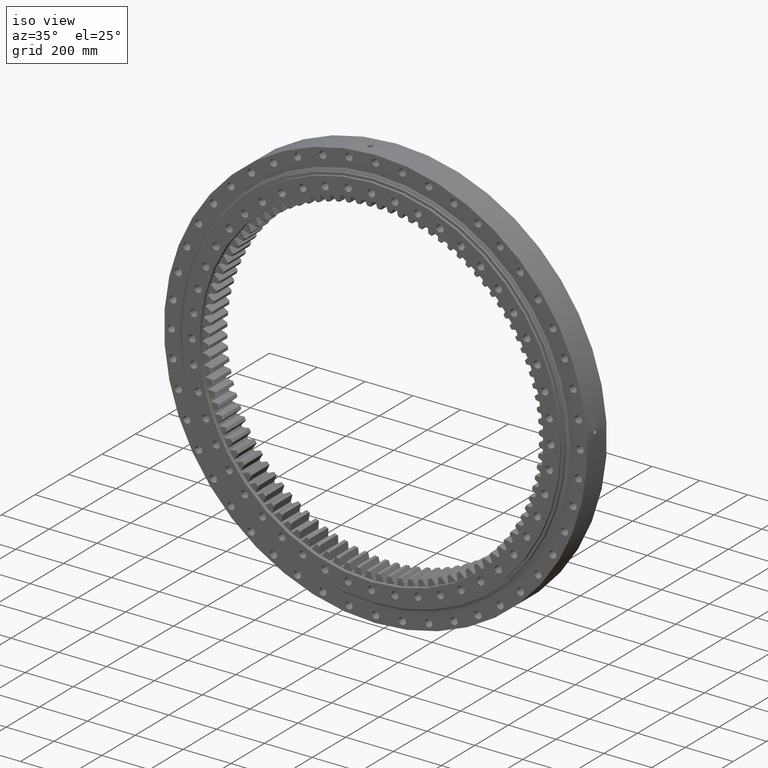
[diagram: clean part render]
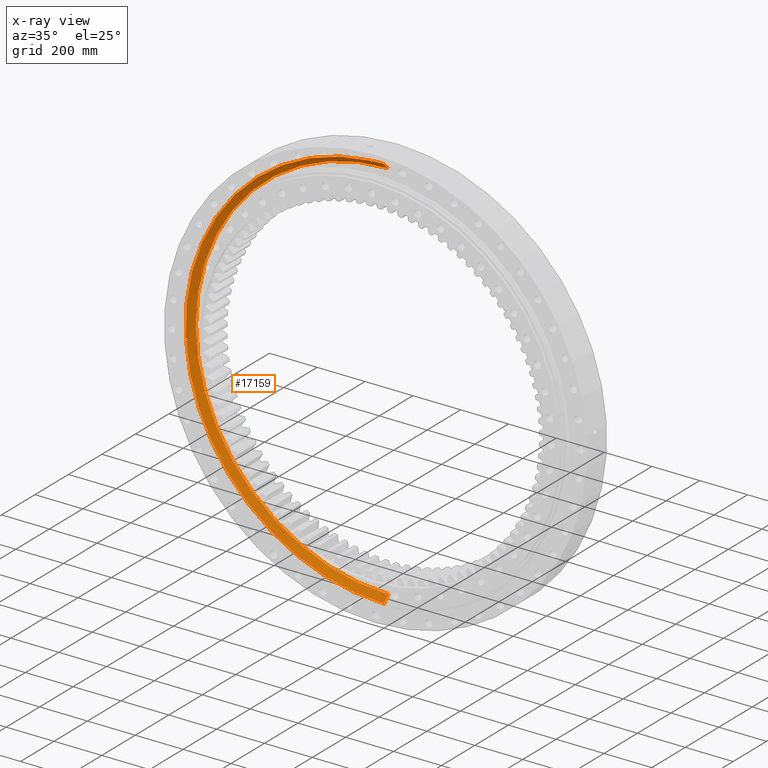
[diagram: x-ray — body ghosted, one internal face saturated and labeled with its STEP entity id]
A machine part, iso view, then the same camera in x-ray: the body is ghosted and one INTERNAL B-rep face — a face not visible from any outside direction — is saturated and labeled: STEP entity #17159.
In plain terms, the highlighted conical surface has half-angle 45 deg.
Its self-contained STEP definition (entity closure, byte-faithful):
#1994 = AXIS2_PLACEMENT_3D ( 'NONE', #27894, #13440, #30367 ) ;
#2765 = EDGE_CURVE ( 'NONE', #8058, #19273, #21611, .T. ) ;
#2924 = CONICAL_SURFACE ( 'NONE', #14099, 830.5771644662753500, 0.7853981633974507200 ) ;
#3420 = CARTESIAN_POINT ( 'NONE',  ( 4.160149912255970400E-014, 26.28427124746185600, 804.9999999999998900 ) ) ;
#3650 = CARTESIAN_POINT ( 'NONE',  ( -58.75615007350208400, 0.7071067749259806200, 828.4963131914215600 ) ) ;
#3674 = FACE_OUTER_BOUND ( 'NONE', #28144, .T. ) ;
#4325 = CIRCLE ( 'NONE', #7021, 830.5771644662753500 ) ;
#4683 = B_SPLINE_CURVE_WITH_KNOTS ( 'NONE', 3,
 ( #17754, #17825, #17522, #17490, #17450, #17414, #17384, #17352, #17312, #17284, #17253, #17186, #17181, #17154, #17121, #17083, #17038, #16994, #16963, #16954, #16929, #16869, #16864, #16831, #16725, #16693, #16656, #16650, #16569, #16507, #16468, #16392, #16364, #16330 ),
 .UNSPECIFIED., .F., .F.,
 ( 4, 2, 2, 2, 2, 2, 2, 2, 2, 2, 2, 2, 2, 2, 2, 2, 4 ),
 ( 2.819039657882075000E-007, 0.001887760095777650600, 0.002831499191683581200, 0.003775238287589512700, 0.004718977383495443800, 0.005662716479401374400, 0.006606455575307305900, 0.007078325123260306400, 0.007550194671213305900, 0.008493933767119349300, 0.009437672863025393600, 0.01038141195893143400, 0.01132515105483747500, 0.01226889015074351800, 0.01321262924664956000, 0.01415636834255560300, 0.01510010743846164300 ),
 .UNSPECIFIED. ) ;
#5961 = ORIENTED_EDGE ( 'NONE', *, *, #2765, .F. ) ;
#6424 = CIRCLE ( 'NONE', #19906, 804.9999999999998900 ) ;
#6649 = VERTEX_POINT ( 'NONE', #27875 ) ;
#6911 = CARTESIAN_POINT ( 'NONE',  ( 4.602330165933392200E-014, 0.7071067811865298100, 830.5771644662753500 ) ) ;
#6930 = CARTESIAN_POINT ( 'NONE',  ( -829.0776289193858000, 0.7071067749259414300, -49.88698596474849000 ) ) ;
#7021 = AXIS2_PLACEMENT_3D ( 'NONE', #8697, #8650, #8434 ) ;
#8058 = VERTEX_POINT ( 'NONE', #27021 ) ;
#8434 = DIRECTION ( 'NONE',  ( 5.551115123125782700E-017, -3.498364687317542000E-017, 1.000000000000000000 ) ) ;
#8481 = ORIENTED_EDGE ( 'NONE', *, *, #9378, .T. ) ;
#8650 = DIRECTION ( 'NONE',  ( 1.173697223544192200E-016, -1.000000000000000000, -3.494217355385783800E-017 ) ) ;
#8697 = CARTESIAN_POINT ( 'NONE',  ( -8.299292658279348100E-017, 0.7071067811865589000, 2.470784786933051700E-017 ) ) ;
#8825 = DIRECTION ( 'NONE',  ( 5.551115123125782700E-017, -3.447897592003592100E-017, 1.000000000000000000 ) ) ;
#8918 = DIRECTION ( 'NONE',  ( 1.173697223544192200E-016, -1.000000000000000000, -3.494217355385783800E-017 ) ) ;
#8923 = CARTESIAN_POINT ( 'NONE',  ( -3.084977618602845200E-015, 26.28427124746188100, 9.184295676654885200E-016 ) ) ;
#9378 = EDGE_CURVE ( 'NONE', #6649, #23886, #4683, .T. ) ;
#9731 = EDGE_CURVE ( 'NONE', #12153, #8058, #6424, .T. ) ;
#10393 = DIRECTION ( 'NONE',  ( -4.285499050785208200E-017, -0.7071067811865458000, -0.7071067811865492400 ) ) ;
#10447 = EDGE_CURVE ( 'NONE', #10978, #27844, #16462, .T. ) ;
#10466 = EDGE_CURVE ( 'NONE', #12153, #25953, #29140, .T. ) ;
#10791 = ORIENTED_EDGE ( 'NONE', *, *, #10447, .T. ) ;
#10978 = VERTEX_POINT ( 'NONE', #6930 ) ;
#12153 = VERTEX_POINT ( 'NONE', #3420 ) ;
#12616 = EDGE_CURVE ( 'NONE', #25953, #6649, #20680, .T. ) ;
#12744 = CARTESIAN_POINT ( 'NONE',  ( -1.479056541033504100E-013, 0.7071067811865879800, -830.5771644662753500 ) ) ;
#13029 = CARTESIAN_POINT ( 'NONE',  ( -828.4963131914212200, 0.7071067749259748500, -58.75615007350496900 ) ) ;
#13440 = DIRECTION ( 'NONE',  ( 1.173697223544192200E-016, -1.000000000000000000, -3.494217355385783800E-017 ) ) ;
#13641 = EDGE_CURVE ( 'NONE', #27844, #19273, #4325, .T. ) ;
#14099 = AXIS2_PLACEMENT_3D ( 'NONE', #15867, #15861, #16337 ) ;
#15702 = ORIENTED_EDGE ( 'NONE', *, *, #30838, .T. ) ;
#15861 = DIRECTION ( 'NONE',  ( 1.173697223544192200E-016, -1.000000000000000000, -3.494217355385783800E-017 ) ) ;
#15867 = CARTESIAN_POINT ( 'NONE',  ( -8.299292658279348100E-017, 0.7071067811865589000, 2.470784786933051700E-017 ) ) ;
#16330 = CARTESIAN_POINT ( 'NONE',  ( -58.75615007350208400, 0.7071067749259806200, 828.4963131914215600 ) ) ;
#16337 = DIRECTION ( 'NONE',  ( 5.551115123125782700E-017, -3.498364687317542000E-017, 1.000000000000000000 ) ) ;
#16364 = CARTESIAN_POINT ( 'NONE',  ( -58.70612361626341200, 0.9303204190858477300, 828.2760867514199400 ) ) ;
#16392 = CARTESIAN_POINT ( 'NONE',  ( -58.63903918853209500, 1.152564817293510800, 828.0580401137198100 ) ) ;
#16462 = B_SPLINE_CURVE_WITH_KNOTS ( 'NONE', 3,
 ( #29050, #29153, #28807, #28730, #28632, #28596, #28522, #28490, #28414, #28372, #28301, #28197, #28163, #28123, #28092, #28051, #28006, #27977, #27934, #27889, #27862, #27823, #27764, #27727, #27690, #27661, #27629, #27580, #27482, #27422, #27321, #27287, #27222, #27181 ),
 .UNSPECIFIED., .F., .F.,
 ( 4, 2, 2, 2, 2, 2, 2, 2, 2, 2, 2, 2, 2, 2, 2, 2, 4 ),
 ( 2.819039657882818800E-007, 0.001887760095777866800, 0.002831499191683906100, 0.003775238287589945600, 0.004718977383495984200, 0.005662716479402023200, 0.006606455575308063100, 0.007078325123261028000, 0.007550194671213994600, 0.008493933767119928700, 0.009437672863025863700, 0.01038141195893179500, 0.01132515105483773000, 0.01226889015074366300, 0.01321262924664959800, 0.01415636834255553000, 0.01510010743846146500 ),
 .UNSPECIFIED. ) ;
#16468 = CARTESIAN_POINT ( 'NONE',  ( -58.47163226054887300, 1.588156422544150500, 827.6332012852169600 ) ) ;
#16507 = CARTESIAN_POINT ( 'NONE',  ( -58.37135885516068600, 1.801887690512095700, 827.4260207579915200 ) ) ;
#16569 = CARTESIAN_POINT ( 'NONE',  ( -58.13527837603387400, 2.220618285304049700, 827.0228780401311000 ) ) ;
#16650 = CARTESIAN_POINT ( 'NONE',  ( -57.99952636433624100, 2.425631312044119100, 826.8268986413403400 ) ) ;
#16656 = CARTESIAN_POINT ( 'NONE',  ( -57.68679503776266400, 2.825503347227623900, 826.4479319163430100 ) ) ;
#16693 = CARTESIAN_POINT ( 'NONE',  ( -57.51038704747234200, 3.019105049154858100, 826.2661643110006900 ) ) ;
#16725 = CARTESIAN_POINT ( 'NONE',  ( -57.12084612304624200, 3.381593021530775500, 825.9298317156918800 ) ) ;
#16831 = CARTESIAN_POINT ( 'NONE',  ( -56.90679041233368500, 3.551947020679970400, 825.7738610832333300 ) ) ;
#16864 = CARTESIAN_POINT ( 'NONE',  ( -56.43086568471996100, 3.865619396219787300, 825.4921166812401900 ) ) ;
#16869 = CARTESIAN_POINT ( 'NONE',  ( -56.17236137763148900, 4.006271102603848000, 825.3687830573341000 ) ) ;
#16929 = CARTESIAN_POINT ( 'NONE',  ( -55.61839348073754500, 4.241931151842667400, 825.1701032648163600 ) ) ;
#16954 = CARTESIAN_POINT ( 'NONE',  ( -55.32026964685964300, 4.337394274511928500, 825.0944774453715800 ) ) ;
#16963 = CARTESIAN_POINT ( 'NONE',  ( -54.70771026145359200, 4.466053781441083000, 825.0063774183651000 ) ) ;
#16994 = CARTESIAN_POINT ( 'NONE',  ( -54.38577409096333100, 4.500182403152420500, 824.9934643608515900 ) ) ;
#17038 = CARTESIAN_POINT ( 'NONE',  ( -53.91461144770102700, 4.499907636690811500, 825.0246198493598500 ) ) ;
#17083 = CARTESIAN_POINT ( 'NONE',  ( -53.75848606023317400, 4.491581000116914500, 825.0431518085613300 ) ) ;
#17121 = CARTESIAN_POINT ( 'NONE',  ( -53.44809612017495200, 4.458430625387169500, 825.0965375425956800 ) ) ;
#17154 = CARTESIAN_POINT ( 'NONE',  ( -53.29298299451183100, 4.433305148934822500, 825.1317477284764000 ) ) ;
#17159 = ADVANCED_FACE ( 'NONE', ( #3674 ), #2924, .F. ) ;
#17181 = CARTESIAN_POINT ( 'NONE',  ( -52.84511557582695900, 4.336186330847443300, 825.2579117696348000 ) ) ;
#17186 = CARTESIAN_POINT ( 'NONE',  ( -52.56479247782841900, 4.242476124516651100, 825.3697033721412000 ) ) ;
#17250 = ORIENTED_EDGE ( 'NONE', *, *, #13641, .T. ) ;
#17253 = CARTESIAN_POINT ( 'NONE',  ( -52.03767558720775800, 4.004952024372520300, 825.6411000588385600 ) ) ;
#17284 = CARTESIAN_POINT ( 'NONE',  ( -51.80061632342919600, 3.865693456393461100, 825.7955256338528900 ) ) ;
#17312 = CARTESIAN_POINT ( 'NONE',  ( -51.36862626591379700, 3.554624558771209300, 826.1341800080188000 ) ) ;
#17352 = CARTESIAN_POINT ( 'NONE',  ( -51.17282615545065000, 3.381192539239460200, 826.3200851392209600 ) ) ;
#17384 = CARTESIAN_POINT ( 'NONE',  ( -50.82980963003410600, 3.017737297141534800, 826.7053980843016900 ) ) ;
#17414 = CARTESIAN_POINT ( 'NONE',  ( -50.68082690221709200, 2.826746785179973500, 826.9058857208890500 ) ) ;
#17450 = CARTESIAN_POINT ( 'NONE',  ( -50.42124584184259800, 2.429008343510906000, 827.3202312457389100 ) ) ;
#17490 = CARTESIAN_POINT ( 'NONE',  ( -50.31029178937459500, 2.220952035382108800, 827.5354207968554200 ) ) ;
#17522 = CARTESIAN_POINT ( 'NONE',  ( -50.03639344433361900, 1.588310312667359400, 828.1858429146407200 ) ) ;
#17754 = CARTESIAN_POINT ( 'NONE',  ( -49.88698596474560500, 0.7071067749260567800, 829.0776289193860300 ) ) ;
#17825 = CARTESIAN_POINT ( 'NONE',  ( -49.92868492528104000, 1.153455387157066700, 828.6279639095387200 ) ) ;
#19273 = VERTEX_POINT ( 'NONE', #26899 ) ;
#19906 = AXIS2_PLACEMENT_3D ( 'NONE', #8923, #8918, #8825 ) ;
#20680 = CIRCLE ( 'NONE', #30523, 830.5771644662753500 ) ;
#21611 = LINE ( 'NONE', #12744, #27284 ) ;
#22660 = VECTOR ( 'NONE', #27083, 1000.000000000000000 ) ;
#23886 = VERTEX_POINT ( 'NONE', #3650 ) ;
#23994 = ORIENTED_EDGE ( 'NONE', *, *, #12616, .T. ) ;
#25953 = VERTEX_POINT ( 'NONE', #6911 ) ;
#26485 = ORIENTED_EDGE ( 'NONE', *, *, #9731, .F. ) ;
#26899 = CARTESIAN_POINT ( 'NONE',  ( -1.479056541033504100E-013, 0.7071067811865879800, -830.5771644662753500 ) ) ;
#27021 = CARTESIAN_POINT ( 'NONE',  ( -1.478617114199819600E-013, 26.28427124746190900, -804.9999999999998900 ) ) ;
#27083 = DIRECTION ( 'NONE',  ( 1.222452380498864200E-016, -0.7071067811865458000, 0.7071067811865492400 ) ) ;
#27181 = CARTESIAN_POINT ( 'NONE',  ( -828.4963131914212200, 0.7071067749259748500, -58.75615007350496900 ) ) ;
#27222 = CARTESIAN_POINT ( 'NONE',  ( -828.2760867514196000, 0.9303204190858923600, -58.70612361626629600 ) ) ;
#27284 = VECTOR ( 'NONE', #10393, 1000.000000000000000 ) ;
#27287 = CARTESIAN_POINT ( 'NONE',  ( -828.0580401137197000, 1.152564817293533700, -58.63903918853496600 ) ) ;
#27321 = CARTESIAN_POINT ( 'NONE',  ( -827.6332012852165000, 1.588156422544164200, -58.47163226055171500 ) ) ;
#27422 = CARTESIAN_POINT ( 'NONE',  ( -827.4260207579911800, 1.801887690512140100, -58.37135885516350000 ) ) ;
#27482 = CARTESIAN_POINT ( 'NONE',  ( -827.0228780401309900, 2.220618285304087400, -58.13527837603670900 ) ) ;
#27580 = CARTESIAN_POINT ( 'NONE',  ( -826.8268986413403400, 2.425631312044155100, -57.99952636433908300 ) ) ;
#27629 = CARTESIAN_POINT ( 'NONE',  ( -826.4479319163423300, 2.825503347227649200, -57.68679503776544200 ) ) ;
#27661 = CARTESIAN_POINT ( 'NONE',  ( -826.2661643110000100, 3.019105049154903000, -57.51038704747510600 ) ) ;
#27690 = CARTESIAN_POINT ( 'NONE',  ( -825.9298317156915300, 3.381593021530809200, -57.12084612304901300 ) ) ;
#27727 = CARTESIAN_POINT ( 'NONE',  ( -825.7738610832329900, 3.551947020679962800, -56.90679041233648400 ) ) ;
#27764 = CARTESIAN_POINT ( 'NONE',  ( -825.4921166812396200, 3.865619396219770900, -56.43086568472276100 ) ) ;
#27823 = CARTESIAN_POINT ( 'NONE',  ( -825.3687830573336400, 4.006271102603836500, -56.17236137763426000 ) ) ;
#27844 = VERTEX_POINT ( 'NONE', #13029 ) ;
#27862 = CARTESIAN_POINT ( 'NONE',  ( -825.1701032648159100, 4.241931151842639900, -55.61839348074030200 ) ) ;
#27875 = CARTESIAN_POINT ( 'NONE',  ( -49.88698596474560500, 0.7071067749260567800, 829.0776289193860300 ) ) ;
#27889 = CARTESIAN_POINT ( 'NONE',  ( -825.0944774453712400, 4.337394274511896500, -55.32026964686240700 ) ) ;
#27894 = CARTESIAN_POINT ( 'NONE',  ( -8.299292658279348100E-017, 0.7071067811865589000, 2.470784786933051700E-017 ) ) ;
#27934 = CARTESIAN_POINT ( 'NONE',  ( -825.0063774183646500, 4.466053781441037700, -54.70771026145638400 ) ) ;
#27977 = CARTESIAN_POINT ( 'NONE',  ( -824.9934643608515900, 4.500182403152368100, -54.38577409096611600 ) ) ;
#28006 = CARTESIAN_POINT ( 'NONE',  ( -825.0246198493596200, 4.499907636690749300, -53.91461144770383400 ) ) ;
#28051 = CARTESIAN_POINT ( 'NONE',  ( -825.0431518085606500, 4.491581000116848800, -53.75848606023596700 ) ) ;
#28053 = CIRCLE ( 'NONE', #1994, 830.5771644662753500 ) ;
#28092 = CARTESIAN_POINT ( 'NONE',  ( -825.0965375425954600, 4.458430625387100200, -53.44809612017777300 ) ) ;
#28123 = CARTESIAN_POINT ( 'NONE',  ( -825.1317477284768500, 4.433305148934747000, -53.29298299451462400 ) ) ;
#28144 = EDGE_LOOP ( 'NONE', ( #5961, #26485, #28938, #23994, #8481, #15702, #10791, #17250 ) ) ;
#28163 = CARTESIAN_POINT ( 'NONE',  ( -825.2579117696346900, 4.336186330847358900, -52.84511557582976600 ) ) ;
#28197 = CARTESIAN_POINT ( 'NONE',  ( -825.3697033721413200, 4.242476124516564100, -52.56479247783124000 ) ) ;
#28301 = CARTESIAN_POINT ( 'NONE',  ( -825.6411000588383300, 4.004952024372430600, -52.03767558721060700 ) ) ;
#28372 = CARTESIAN_POINT ( 'NONE',  ( -825.7955256338527800, 3.865693456393331800, -51.80061632343196700 ) ) ;
#28414 = CARTESIAN_POINT ( 'NONE',  ( -826.1341800080186900, 3.554624558771074300, -51.36862626591661000 ) ) ;
#28490 = CARTESIAN_POINT ( 'NONE',  ( -826.3200851392210800, 3.381192539239406400, -51.17282615545354200 ) ) ;
#28522 = CARTESIAN_POINT ( 'NONE',  ( -826.7053980843018100, 3.017737297141490000, -50.82980963003703300 ) ) ;
#28593 = DIRECTION ( 'NONE',  ( 1.173697223544192200E-016, -1.000000000000000000, -3.494217355385783800E-017 ) ) ;
#28596 = CARTESIAN_POINT ( 'NONE',  ( -826.9058857208892700, 2.826746785179841600, -50.68082690221993400 ) ) ;
#28632 = CARTESIAN_POINT ( 'NONE',  ( -827.3202312457386800, 2.429008343510775900, -50.42124584184545500 ) ) ;
#28726 = CARTESIAN_POINT ( 'NONE',  ( -8.299292658279348100E-017, 0.7071067811865589000, 2.470784786933051700E-017 ) ) ;
#28730 = CARTESIAN_POINT ( 'NONE',  ( -827.5354207968551900, 2.220952035382064400, -50.31029178937750100 ) ) ;
#28807 = CARTESIAN_POINT ( 'NONE',  ( -828.1858429146406000, 1.588310312667322400, -50.03639344433652500 ) ) ;
#28912 = CARTESIAN_POINT ( 'NONE',  ( 4.602330165933392200E-014, 0.7071067811865298100, 830.5771644662753500 ) ) ;
#28938 = ORIENTED_EDGE ( 'NONE', *, *, #10466, .T. ) ;
#29050 = CARTESIAN_POINT ( 'NONE',  ( -829.0776289193858000, 0.7071067749259414300, -49.88698596474849000 ) ) ;
#29140 = LINE ( 'NONE', #28912, #22660 ) ;
#29153 = CARTESIAN_POINT ( 'NONE',  ( -828.6279639095388300, 1.153455387157013900, -49.92868492528394600 ) ) ;
#30367 = DIRECTION ( 'NONE',  ( 5.551115123125782700E-017, -3.498364687317542000E-017, 1.000000000000000000 ) ) ;
#30523 = AXIS2_PLACEMENT_3D ( 'NONE', #28726, #28593, #30649 ) ;
#30649 = DIRECTION ( 'NONE',  ( 5.551115123125782700E-017, -3.498364687317542000E-017, 1.000000000000000000 ) ) ;
#30838 = EDGE_CURVE ( 'NONE', #23886, #10978, #28053, .T. ) ;